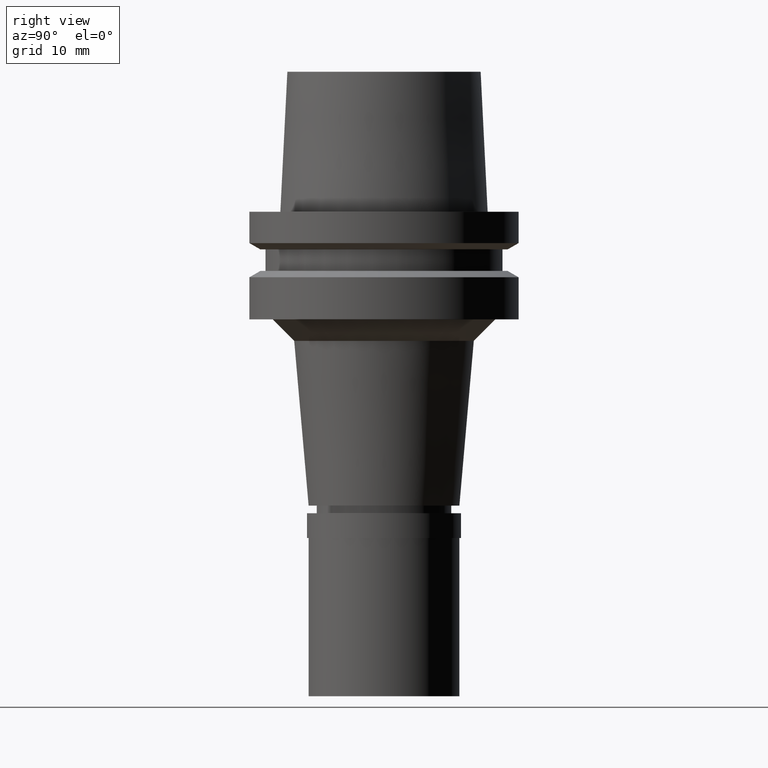
[diagram: clean part render]
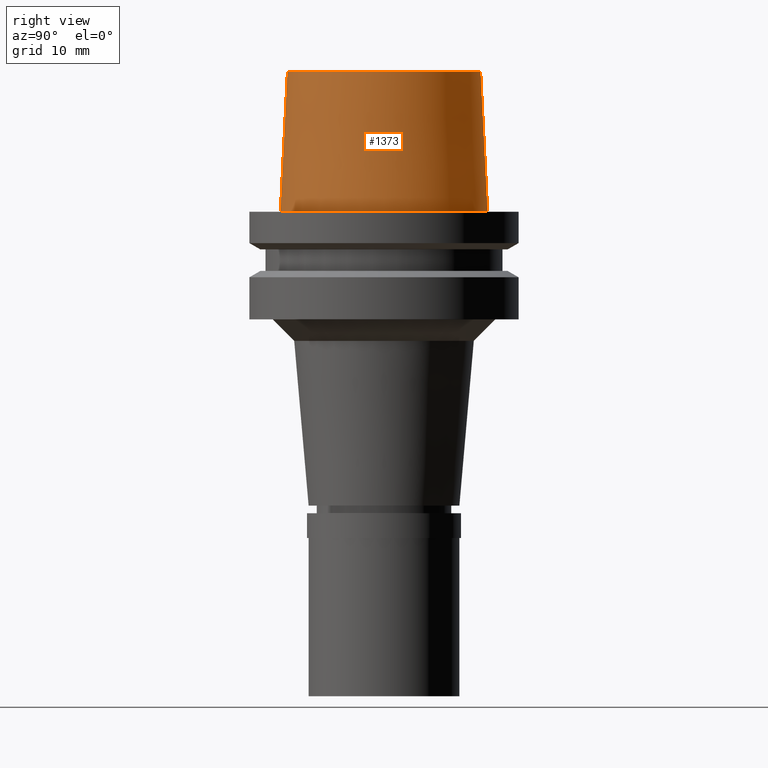
[diagram: same view with one face highlighted and labeled with its STEP entity id]
A machine part, right view. The second image highlights one B-rep face of the part: STEP entity #1373.
In plain terms, the highlighted conical surface has half-angle 2.862 deg.
Its self-contained STEP definition (entity closure, byte-faithful):
#16 = VECTOR ( 'NONE', #2133, 999.9999999999998863 ) ;
#38 = DIRECTION ( 'NONE',  ( 0.0000000000000000000, -1.000000000000000000, 0.0000000000000000000 ) ) ;
#57 = LINE ( 'NONE', #250, #1464 ) ;
#93 = EDGE_CURVE ( 'NONE', #1637, #845, #1459, .T. ) ;
#250 = CARTESIAN_POINT ( 'NONE',  ( 0.0000000000000000000, 8.975000960130000038, 13.00000000000000000 ) ) ;
#304 = CONICAL_SURFACE ( 'NONE', #1098, 9.300000365763999355, 0.04995830450907576964 ) ;
#401 = AXIS2_PLACEMENT_3D ( 'NONE', #2341, #439, #837 ) ;
#439 = DIRECTION ( 'NONE',  ( 0.0000000000000000000, 0.0000000000000000000, -1.000000000000000000 ) ) ;
#457 = CARTESIAN_POINT ( 'NONE',  ( 0.0000000000000000000, -8.975000960130000038, 13.00000000000000000 ) ) ;
#781 = EDGE_CURVE ( 'NONE', #2227, #1637, #1782, .T. ) ;
#802 = EDGE_LOOP ( 'NONE', ( #1954, #1265, #813, #1426 ) ) ;
#813 = ORIENTED_EDGE ( 'NONE', *, *, #1985, .T. ) ;
#837 = DIRECTION ( 'NONE',  ( 0.0000000000000000000, 1.000000000000000000, 0.0000000000000000000 ) ) ;
#845 = VERTEX_POINT ( 'NONE', #1571 ) ;
#1072 = FACE_OUTER_BOUND ( 'NONE', #802, .T. ) ;
#1093 = DIRECTION ( 'NONE',  ( 0.0000000000000000000, 0.0000000000000000000, 1.000000000000000000 ) ) ;
#1098 = AXIS2_PLACEMENT_3D ( 'NONE', #1259, #2541, #38 ) ;
#1101 = AXIS2_PLACEMENT_3D ( 'NONE', #2521, #1093, #1294 ) ;
#1259 = CARTESIAN_POINT ( 'NONE',  ( 0.0000000000000000000, 0.0000000000000000000, 6.500000000000000000 ) ) ;
#1265 = ORIENTED_EDGE ( 'NONE', *, *, #93, .T. ) ;
#1294 = DIRECTION ( 'NONE',  ( 0.0000000000000000000, -1.000000000000000000, 0.0000000000000000000 ) ) ;
#1373 = ADVANCED_FACE ( 'NONE', ( #1072 ), #304, .T. ) ;
#1426 = ORIENTED_EDGE ( 'NONE', *, *, #1996, .F. ) ;
#1459 = LINE ( 'NONE', #457, #16 ) ;
#1464 = VECTOR ( 'NONE', #2115, 999.9999999999998863 ) ;
#1571 = CARTESIAN_POINT ( 'NONE',  ( 0.0000000000000000000, -9.624999771398000448, 1.332267629550000037E-13 ) ) ;
#1637 = VERTEX_POINT ( 'NONE', #2470 ) ;
#1782 = CIRCLE ( 'NONE', #401, 8.975000960130000038 ) ;
#1954 = ORIENTED_EDGE ( 'NONE', *, *, #781, .T. ) ;
#1979 = CARTESIAN_POINT ( 'NONE',  ( 0.0000000000000000000, 8.975000960130000038, 13.00000000000000000 ) ) ;
#1985 = EDGE_CURVE ( 'NONE', #845, #2270, #2259, .T. ) ;
#1996 = EDGE_CURVE ( 'NONE', #2227, #2270, #57, .T. ) ;
#2115 = DIRECTION ( 'NONE',  ( 0.0000000000000000000, 0.04993752584484958956, -0.9987523434327927330 ) ) ;
#2133 = DIRECTION ( 'NONE',  ( 0.0000000000000000000, -0.04993752584484958956, -0.9987523434327927330 ) ) ;
#2227 = VERTEX_POINT ( 'NONE', #1979 ) ;
#2259 = CIRCLE ( 'NONE', #1101, 9.624999771398000448 ) ;
#2270 = VERTEX_POINT ( 'NONE', #2586 ) ;
#2341 = CARTESIAN_POINT ( 'NONE',  ( 0.0000000000000000000, 0.0000000000000000000, 13.00000000000000000 ) ) ;
#2470 = CARTESIAN_POINT ( 'NONE',  ( 0.0000000000000000000, -8.975000960130000038, 13.00000000000000000 ) ) ;
#2521 = CARTESIAN_POINT ( 'NONE',  ( 0.0000000000000000000, 0.0000000000000000000, 2.557953848736000191E-13 ) ) ;
#2541 = DIRECTION ( 'NONE',  ( 0.0000000000000000000, 0.0000000000000000000, -1.000000000000000000 ) ) ;
#2586 = CARTESIAN_POINT ( 'NONE',  ( 0.0000000000000000000, 9.624999771398000448, 1.332267629550000037E-13 ) ) ;